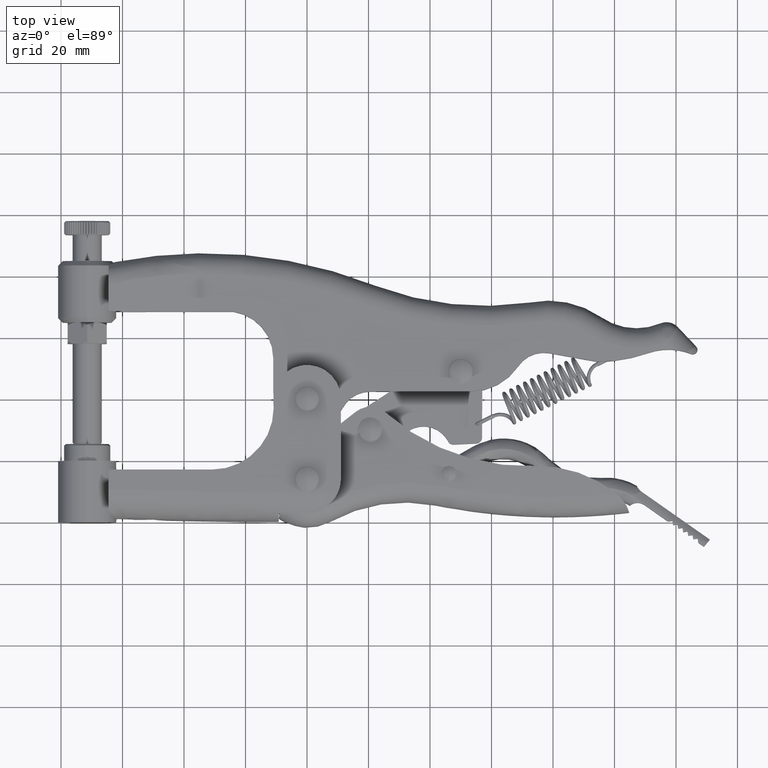
[diagram: clean part render]
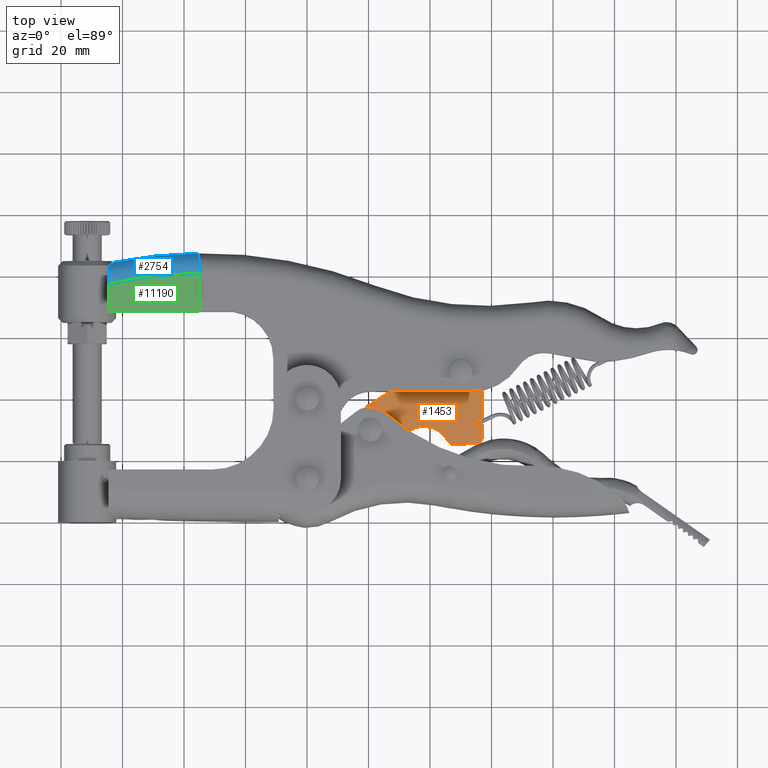
[diagram: same view with three faces highlighted in distinct colors, each labeled with its STEP entity id]
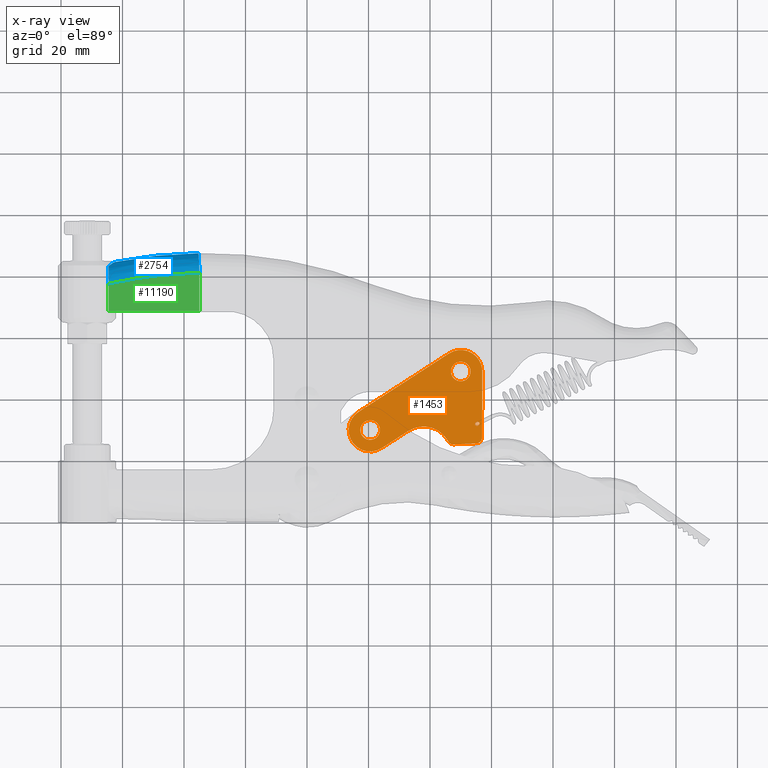
[diagram: x-ray of the same camera — body ghosted, the three highlighted faces saturated]
A machine part, top view with three faces highlighted in distinct colors.
The next image is the same camera in x-ray (body ghosted, the three faces saturated) — at least one of them is partly hidden behind the body in this view.
Their STEP definitions:

[orange] entity #1453 — the highlighted planar face has unit normal (0, -0, 1).
#10 = DIRECTION ( 'NONE',  ( 3.365464950932093500E-016, -2.261047999189759900E-016, 1.000000000000000000 ) ) ;
#728 = CARTESIAN_POINT ( 'NONE',  ( 55.88016366359298100, 12.79785140433035200, 3.000000000000005800 ) ) ;
#831 = CARTESIAN_POINT ( 'NONE',  ( 50.00000000000006400, 9.000000000000007100, 3.000000000000009800 ) ) ;
#988 = VERTEX_POINT ( 'NONE', #3688 ) ;
#1080 = DIRECTION ( 'NONE',  ( -0.8400233805133320300, -0.5425502006182965100, 1.445602896647328300E-016 ) ) ;
#1212 = DIRECTION ( 'NONE',  ( 0.8400233805133319200, 0.5425502006182966200, -1.600337199513108900E-016 ) ) ;
#1250 = ORIENTED_EDGE ( 'NONE', *, *, #16019, .T. ) ;
#1367 = AXIS2_PLACEMENT_3D ( 'NONE', #14177, #10, #16548 ) ;
#1441 = DIRECTION ( 'NONE',  ( 3.365464950932093500E-016, -2.261047999189759900E-016, 1.000000000000000000 ) ) ;
#1453 = ADVANCED_FACE ( 'NONE', ( #11820, #30729, #29981, #23678 ), #22285, .T. ) ;
#1895 = AXIS2_PLACEMENT_3D ( 'NONE', #15591, #1441, #17994 ) ;
#1942 = AXIS2_PLACEMENT_3D ( 'NONE', #831, #17385, #3203 ) ;
#2058 = VERTEX_POINT ( 'NONE', #7025 ) ;
#2194 = ORIENTED_EDGE ( 'NONE', *, *, #15214, .F. ) ;
#2273 = CARTESIAN_POINT ( 'NONE',  ( 55.91186988155786300, -8.341241883703387900, 3.000000000000001300 ) ) ;
#2460 = CARTESIAN_POINT ( 'NONE',  ( 54.63505146514872000, -7.997772829490882500, 3.000000000000002200 ) ) ;
#2483 = DIRECTION ( 'NONE',  ( 3.365464950932093500E-016, -2.261047999189759900E-016, 1.000000000000000000 ) ) ;
#2559 = B_SPLINE_CURVE_WITH_KNOTS ( 'NONE', 3,
 ( #11858, #26056, #16629, #2460, #19018, #4828, #21398, #7193, #23769, #9563, #26155, #11961, #28549, #14350 ),
 .UNSPECIFIED., .F., .F.,
 ( 4, 2, 2, 2, 2, 2, 4 ),
 ( 0.004224251357544340500, 0.004489551586989582400, 0.004754851816434825200, 0.005285452275325312400, 0.005816052734215798800, 0.006081352963661051900, 0.006346653193106306000 ),
 .UNSPECIFIED. ) ;
#2662 = CIRCLE ( 'NONE', #18068, 7.000000000000002700 ) ;
#2990 = CARTESIAN_POINT ( 'NONE',  ( 49.99999999999965900, 9.000000000002275500, 3.000000000000007100 ) ) ;
#3132 = VERTEX_POINT ( 'NONE', #728 ) ;
#3203 = DIRECTION ( 'NONE',  ( 1.000000000000000000, 0.0000000000000000000, -2.710505431213759600E-016 ) ) ;
#3601 = CARTESIAN_POINT ( 'NONE',  ( 37.91149953354408100, -17.85475056594568200, 3.000000000000004900 ) ) ;
#3688 = CARTESIAN_POINT ( 'NONE',  ( 56.99997832334123200, 8.982579530772522200, 3.000000000000004900 ) ) ;
#3785 = LINE ( 'NONE', #21415, #16377 ) ;
#3835 = ORIENTED_EDGE ( 'NONE', *, *, #11928, .T. ) ;
#4274 = LINE ( 'NONE', #7645, #22420 ) ;
#4414 = VERTEX_POINT ( 'NONE', #14735 ) ;
#4502 = CIRCLE ( 'NONE', #19075, 7.000000000000007100 ) ;
#4650 = CARTESIAN_POINT ( 'NONE',  ( 55.46222331067158300, -8.631234747194520600, 3.000000000000000900 ) ) ;
#4828 = CARTESIAN_POINT ( 'NONE',  ( 54.78467375531331400, -7.673714168762497700, 3.000000000000000400 ) ) ;
#4911 = CIRCLE ( 'NONE', #11262, 9.000000000000067500 ) ;
#5219 = ORIENTED_EDGE ( 'NONE', *, *, #18344, .T. ) ;
#5337 = DIRECTION ( 'NONE',  ( -0.8400233805133320300, -0.5425502006182965100, 1.858632295689435400E-016 ) ) ;
#5653 = CARTESIAN_POINT ( 'NONE',  ( 23.72357957778722000, -10.03808653969601900, 3.000000000000015500 ) ) ;
#5793 = VERTEX_POINT ( 'NONE', #22972 ) ;
#5952 = DIRECTION ( 'NONE',  ( -0.8400233805133320300, -0.5425502006182965100, 1.445602896647328300E-016 ) ) ;
#6017 = AXIS2_PLACEMENT_3D ( 'NONE', #28138, #13945, #30510 ) ;
#6167 = ORIENTED_EDGE ( 'NONE', *, *, #21220, .F. ) ;
#6884 = CARTESIAN_POINT ( 'NONE',  ( 56.03467431464443400, -7.673614474005277400, 3.000000000000001300 ) ) ;
#7012 = CARTESIAN_POINT ( 'NONE',  ( 55.01648755163074600, -8.625803061720629800, 3.000000000000000900 ) ) ;
#7025 = CARTESIAN_POINT ( 'NONE',  ( 54.68367584127175000, -8.345085758288986400, 3.000000000000001300 ) ) ;
#7193 = CARTESIAN_POINT ( 'NONE',  ( 55.24812313021613600, -7.399570885466086000, 3.000000000000000900 ) ) ;
#7645 = CARTESIAN_POINT ( 'NONE',  ( 56.99997832334122400, 8.982579530772522200, 3.000000000000004900 ) ) ;
#8158 = AXIS2_PLACEMENT_3D ( 'NONE', #25637, #11424, #28036 ) ;
#8291 = ORIENTED_EDGE ( 'NONE', *, *, #12843, .T. ) ;
#8548 = ORIENTED_EDGE ( 'NONE', *, *, #19518, .T. ) ;
#8550 = LINE ( 'NONE', #17770, #14856 ) ;
#8669 = ORIENTED_EDGE ( 'NONE', *, *, #26997, .F. ) ;
#9015 = CARTESIAN_POINT ( 'NONE',  ( 17.32357957778721800, -10.03808653969601900, 3.000000000000017300 ) ) ;
#9388 = CARTESIAN_POINT ( 'NONE',  ( 54.78507113184134200, -8.493774728260643100, 3.000000000000002200 ) ) ;
#9563 = CARTESIAN_POINT ( 'NONE',  ( 55.69137039047978300, -7.406783459931113500, 3.000000000000000900 ) ) ;
#9578 = DIRECTION ( 'NONE',  ( 0.9987566876065757700, 0.04985056630712258300, -3.248566103441767900E-016 ) ) ;
#9889 = EDGE_CURVE ( 'NONE', #11141, #11527, #24305, .T. ) ;
#10417 = CIRCLE ( 'NONE', #10923, 1.999999999999998900 ) ;
#10472 = CARTESIAN_POINT ( 'NONE',  ( 54.94183673234290700, -14.37767087287276400, 3.000000000000000000 ) ) ;
#10544 = VERTEX_POINT ( 'NONE', #20752 ) ;
#10770 = CARTESIAN_POINT ( 'NONE',  ( 24.32143098211489700, -15.91825020328709100, 3.000000000000010200 ) ) ;
#10815 = CARTESIAN_POINT ( 'NONE',  ( 20.52357957778721700, -10.03808653969601900, 3.000000000000016400 ) ) ;
#10923 = AXIS2_PLACEMENT_3D ( 'NONE', #16651, #2483, #19038 ) ;
#11003 = AXIS2_PLACEMENT_3D ( 'NONE', #10815, #27418, #13212 ) ;
#11141 = VERTEX_POINT ( 'NONE', #16055 ) ;
#11262 = AXIS2_PLACEMENT_3D ( 'NONE', #29447, #15241, #1080 ) ;
#11424 = DIRECTION ( 'NONE',  ( 3.365464950932093500E-016, -2.261047999189759900E-016, 1.000000000000000000 ) ) ;
#11527 = VERTEX_POINT ( 'NONE', #17180 ) ;
#11676 = CARTESIAN_POINT ( 'NONE',  ( 56.03467431464443400, -7.673614474005277400, 3.000000000000001300 ) ) ;
#11778 = CARTESIAN_POINT ( 'NONE',  ( 54.68367584127175000, -8.345085758288986400, 3.000000000000001300 ) ) ;
#11820 = FACE_BOUND ( 'NONE', #23315, .T. ) ;
#11858 = CARTESIAN_POINT ( 'NONE',  ( 54.68367584127175000, -8.345085758288986400, 3.000000000000001300 ) ) ;
#11928 = EDGE_CURVE ( 'NONE', #3132, #10544, #19482, .T. ) ;
#11961 = CARTESIAN_POINT ( 'NONE',  ( 55.93099309033260600, -7.528070872549030000, 3.000000000000000900 ) ) ;
#12429 = EDGE_CURVE ( 'NONE', #2058, #21310, #2559, .T. ) ;
#12695 = VERTEX_POINT ( 'NONE', #10770 ) ;
#12843 = EDGE_CURVE ( 'NONE', #4414, #988, #4274, .T. ) ;
#12866 = DIRECTION ( 'NONE',  ( -0.8400233805133320300, -0.5425502006182964000, 1.600337199513109400E-016 ) ) ;
#13212 = DIRECTION ( 'NONE',  ( 1.000000000000000000, 0.0000000000000000000, -2.710505431213759600E-016 ) ) ;
#13599 = CARTESIAN_POINT ( 'NONE',  ( 55.04652197242600000, -14.37244575792039900, 3.000000000000000000 ) ) ;
#13796 = AXIS2_PLACEMENT_3D ( 'NONE', #10472, #27061, #12866 ) ;
#13827 = CARTESIAN_POINT ( 'NONE',  ( 20.52357957778681900, -10.03808653969375800, 3.000000000000012400 ) ) ;
#13945 = DIRECTION ( 'NONE',  ( 3.365464950932093500E-016, -2.261047999189759900E-016, 1.000000000000000000 ) ) ;
#14042 = CARTESIAN_POINT ( 'NONE',  ( 47.74930561932976800, -14.73666896881992700, 3.000000000000002200 ) ) ;
#14070 = CARTESIAN_POINT ( 'NONE',  ( 56.08803784128576100, -7.845352811508272200, 3.000000000000001300 ) ) ;
#14177 = CARTESIAN_POINT ( 'NONE',  ( 20.52357957778721700, -10.03808653969601900, 3.000000000000016400 ) ) ;
#14350 = CARTESIAN_POINT ( 'NONE',  ( 56.03467431464443400, -7.673614474005277400, 3.000000000000001300 ) ) ;
#14735 = CARTESIAN_POINT ( 'NONE',  ( 56.94681464648077500, -12.37990965963003400, 2.999999999999999600 ) ) ;
#14856 = VECTOR ( 'NONE', #1212, 1000.000000000000000 ) ;
#15214 = EDGE_CURVE ( 'NONE', #17401, #16263, #26428, .T. ) ;
#15241 = DIRECTION ( 'NONE',  ( -3.365464950932093500E-016, 2.261047999189759900E-016, -1.000000000000000000 ) ) ;
#15543 = ORIENTED_EDGE ( 'NONE', *, *, #19178, .T. ) ;
#15591 = CARTESIAN_POINT ( 'NONE',  ( 49.99999999999965900, 9.000000000002275500, 3.000000000000007100 ) ) ;
#16019 = EDGE_CURVE ( 'NONE', #11527, #29471, #4911, .T. ) ;
#16055 = CARTESIAN_POINT ( 'NONE',  ( 33.02854772797937200, -10.29454014132563900, 3.000000000000008400 ) ) ;
#16119 = ORIENTED_EDGE ( 'NONE', *, *, #20441, .T. ) ;
#16131 = CIRCLE ( 'NONE', #1942, 3.200000000000001500 ) ;
#16213 = DIRECTION ( 'NONE',  ( -0.8400233805133320300, -0.5425502006182965100, 1.858632295689434400E-016 ) ) ;
#16263 = VERTEX_POINT ( 'NONE', #9015 ) ;
#16377 = VECTOR ( 'NONE', #9578, 1000.000000000000100 ) ;
#16439 = CARTESIAN_POINT ( 'NONE',  ( 56.04006666863584500, -8.108467644996119700, 3.000000000000000900 ) ) ;
#16548 = DIRECTION ( 'NONE',  ( 1.000000000000000000, 0.0000000000000000000, -2.710505431213759600E-016 ) ) ;
#16629 = CARTESIAN_POINT ( 'NONE',  ( 54.62636189608717500, -8.174883689408993300, 3.000000000000001800 ) ) ;
#16651 = CARTESIAN_POINT ( 'NONE',  ( 54.94682083981175700, -12.37493238270724800, 3.000000000000003100 ) ) ;
#16709 = CIRCLE ( 'NONE', #8158, 3.200000000000001500 ) ;
#16731 = CARTESIAN_POINT ( 'NONE',  ( 45.87903994977526900, -13.66926377039565900, 3.000000000000003100 ) ) ;
#17180 = CARTESIAN_POINT ( 'NONE',  ( 45.47170995816412600, -12.97179876038097700, 3.000000000000003600 ) ) ;
#17207 = CARTESIAN_POINT ( 'NONE',  ( 46.80000000000006100, 9.000000000000007100, 3.000000000000010700 ) ) ;
#17385 = DIRECTION ( 'NONE',  ( 3.365464950932093500E-016, -2.261047999189759900E-016, 1.000000000000000000 ) ) ;
#17401 = VERTEX_POINT ( 'NONE', #5653 ) ;
#17543 = ORIENTED_EDGE ( 'NONE', *, *, #9889, .T. ) ;
#17770 = CARTESIAN_POINT ( 'NONE',  ( 24.32143098211489700, -15.91825020328709100, 3.000000000000010200 ) ) ;
#17994 = DIRECTION ( 'NONE',  ( -0.8400233805133320300, -0.5425502006182965100, 1.858632295689435400E-016 ) ) ;
#18068 = AXIS2_PLACEMENT_3D ( 'NONE', #2990, #19545, #5337 ) ;
#18344 = EDGE_CURVE ( 'NONE', #21310, #2058, #25404, .T. ) ;
#18423 = EDGE_CURVE ( 'NONE', #25017, #29729, #3785, .T. ) ;
#18838 = CARTESIAN_POINT ( 'NONE',  ( 55.77525910671716500, -8.467977552843320800, 3.000000000000000400 ) ) ;
#19018 = CARTESIAN_POINT ( 'NONE',  ( 54.66082280025447900, -7.910384893900481300, 3.000000000000002200 ) ) ;
#19038 = DIRECTION ( 'NONE',  ( -0.8400233805133319200, -0.5425502006182967300, 2.168404344971010100E-016 ) ) ;
#19075 = AXIS2_PLACEMENT_3D ( 'NONE', #13827, #30414, #16213 ) ;
#19178 = EDGE_CURVE ( 'NONE', #988, #3132, #2662, .T. ) ;
#19482 = CIRCLE ( 'NONE', #1895, 7.000000000000002700 ) ;
#19518 = EDGE_CURVE ( 'NONE', #21242, #12695, #4502, .T. ) ;
#19545 = DIRECTION ( 'NONE',  ( 3.365464950932093500E-016, -2.261047999189759900E-016, 1.000000000000000000 ) ) ;
#19705 = AXIS2_PLACEMENT_3D ( 'NONE', #3601, #20166, #5952 ) ;
#20087 = ORIENTED_EDGE ( 'NONE', *, *, #12429, .T. ) ;
#20166 = DIRECTION ( 'NONE',  ( -3.365464950932093500E-016, 2.261047999189759900E-016, -1.000000000000000000 ) ) ;
#20199 = CARTESIAN_POINT ( 'NONE',  ( 46.20214859567158100, 14.88016366359560600, 3.000000000000009800 ) ) ;
#20441 = EDGE_CURVE ( 'NONE', #29729, #4414, #10417, .T. ) ;
#20752 = CARTESIAN_POINT ( 'NONE',  ( 46.20214859567158100, 14.88016366359560600, 3.000000000000009800 ) ) ;
#20880 = EDGE_CURVE ( 'NONE', #12695, #11141, #8550, .T. ) ;
#20985 = CARTESIAN_POINT ( 'NONE',  ( 16.72572817345873700, -4.157922876100427900, 3.000000000000015100 ) ) ;
#21214 = CARTESIAN_POINT ( 'NONE',  ( 55.27974950392078300, -8.669937496578326000, 3.000000000000001300 ) ) ;
#21220 = EDGE_CURVE ( 'NONE', #26051, #5793, #16709, .T. ) ;
#21242 = VERTEX_POINT ( 'NONE', #20985 ) ;
#21310 = VERTEX_POINT ( 'NONE', #6884 ) ;
#21398 = CARTESIAN_POINT ( 'NONE',  ( 54.92561036455417400, -7.551364831308092100, 3.000000000000000900 ) ) ;
#21415 = CARTESIAN_POINT ( 'NONE',  ( 54.94183673234290700, -14.37767087287271800, 3.000000000000000000 ) ) ;
#21843 = DIRECTION ( 'NONE',  ( 0.002488638461392578300, 0.9999969033345096300, 2.252665571963090500E-016 ) ) ;
#22285 = PLANE ( 'NONE',  #13796 ) ;
#22420 = VECTOR ( 'NONE', #21843, 999.9999999999998900 ) ;
#22972 = CARTESIAN_POINT ( 'NONE',  ( 53.20000000000006700, 9.000000000000007100, 3.000000000000008900 ) ) ;
#23026 = ORIENTED_EDGE ( 'NONE', *, *, #24970, .T. ) ;
#23060 = EDGE_LOOP ( 'NONE', ( #2194, #8669 ) ) ;
#23295 = CIRCLE ( 'NONE', #6017, 1.999999999999998900 ) ;
#23315 = EDGE_LOOP ( 'NONE', ( #24967, #6167 ) ) ;
#23600 = CARTESIAN_POINT ( 'NONE',  ( 54.93089698204124000, -8.593366108244833200, 3.000000000000000900 ) ) ;
#23678 = FACE_OUTER_BOUND ( 'NONE', #25580, .T. ) ;
#23769 = CARTESIAN_POINT ( 'NONE',  ( 55.42890254250542600, -7.368409928722154900, 3.000000000000000900 ) ) ;
#23942 = VECTOR ( 'NONE', #29714, 1000.000000000000000 ) ;
#24305 = CIRCLE ( 'NONE', #19705, 9.000000000000067500 ) ;
#24967 = ORIENTED_EDGE ( 'NONE', *, *, #28917, .F. ) ;
#24970 = EDGE_CURVE ( 'NONE', #29471, #25017, #23295, .T. ) ;
#25017 = VERTEX_POINT ( 'NONE', #14042 ) ;
#25404 = B_SPLINE_CURVE_WITH_KNOTS ( 'NONE', 3,
 ( #11676, #25874, #14070, #30642, #16439, #2273, #18838, #4650, #21214, #7012, #23600, #9388, #25968, #11778 ),
 .UNSPECIFIED., .F., .F.,
 ( 4, 2, 2, 2, 2, 2, 4 ),
 ( 0.002103345937367953200, 0.002368459114890001400, 0.002633572292412049700, 0.003163798647456146600, 0.003694025002500243200, 0.003959138180022291400, 0.004224251357544340500 ),
 .UNSPECIFIED. ) ;
#25580 = EDGE_LOOP ( 'NONE', ( #17543, #1250, #23026, #28058, #16119, #8291, #15543, #3835, #27687, #8548, #29705 ) ) ;
#25637 = CARTESIAN_POINT ( 'NONE',  ( 50.00000000000006400, 9.000000000000007100, 3.000000000000009800 ) ) ;
#25874 = CARTESIAN_POINT ( 'NONE',  ( 56.07406556243556400, -7.752869561865087400, 3.000000000000000400 ) ) ;
#25968 = CARTESIAN_POINT ( 'NONE',  ( 54.72354806466653800, -8.425308567807617200, 3.000000000000001800 ) ) ;
#26051 = VERTEX_POINT ( 'NONE', #17207 ) ;
#26056 = CARTESIAN_POINT ( 'NONE',  ( 54.64377548583112800, -8.264806347167432700, 3.000000000000002200 ) ) ;
#26155 = CARTESIAN_POINT ( 'NONE',  ( 55.77771746555011800, -7.434373458909135500, 3.000000000000002200 ) ) ;
#26428 = CIRCLE ( 'NONE', #1367, 3.200000000000001500 ) ;
#26997 = EDGE_CURVE ( 'NONE', #16263, #17401, #29532, .T. ) ;
#27061 = DIRECTION ( 'NONE',  ( 3.365464950932093900E-016, -2.261047999189761400E-016, 1.000000000000000000 ) ) ;
#27418 = DIRECTION ( 'NONE',  ( 3.365464950932093500E-016, -2.261047999189759900E-016, 1.000000000000000000 ) ) ;
#27482 = EDGE_LOOP ( 'NONE', ( #5219, #20087 ) ) ;
#27687 = ORIENTED_EDGE ( 'NONE', *, *, #27923, .T. ) ;
#27923 = EDGE_CURVE ( 'NONE', #10544, #21242, #30259, .T. ) ;
#28036 = DIRECTION ( 'NONE',  ( 1.000000000000000000, 0.0000000000000000000, -2.710505431213759600E-016 ) ) ;
#28058 = ORIENTED_EDGE ( 'NONE', *, *, #18423, .T. ) ;
#28138 = CARTESIAN_POINT ( 'NONE',  ( 47.64960448671552500, -12.73915559360677100, 3.000000000000002700 ) ) ;
#28549 = CARTESIAN_POINT ( 'NONE',  ( 55.99525527416079000, -7.594303467324129600, 3.000000000000001800 ) ) ;
#28917 = EDGE_CURVE ( 'NONE', #5793, #26051, #16131, .T. ) ;
#29447 = CARTESIAN_POINT ( 'NONE',  ( 37.91149953354408100, -17.85475056594568200, 3.000000000000004900 ) ) ;
#29471 = VERTEX_POINT ( 'NONE', #16731 ) ;
#29532 = CIRCLE ( 'NONE', #11003, 3.200000000000001500 ) ;
#29705 = ORIENTED_EDGE ( 'NONE', *, *, #20880, .T. ) ;
#29714 = DIRECTION ( 'NONE',  ( -0.8400233805133321400, -0.5425502006182965100, 1.600337199513109700E-016 ) ) ;
#29729 = VERTEX_POINT ( 'NONE', #13599 ) ;
#29981 = FACE_BOUND ( 'NONE', #23060, .T. ) ;
#30259 = LINE ( 'NONE', #20199, #23942 ) ;
#30414 = DIRECTION ( 'NONE',  ( 3.365464950932093500E-016, -2.261047999189759900E-016, 1.000000000000000000 ) ) ;
#30510 = DIRECTION ( 'NONE',  ( -0.8400233805133319200, -0.5425502006182967300, 2.168404344971010100E-016 ) ) ;
#30642 = CARTESIAN_POINT ( 'NONE',  ( 56.07018453695887700, -8.022580124843314000, 3.000000000000000400 ) ) ;
#30729 = FACE_BOUND ( 'NONE', #27482, .T. ) ;

[blue] entity #2754 — the highlighted face is a freeform B-spline surface patch.
#549 = CARTESIAN_POINT ( 'NONE',  ( -64.50000000000000000, 41.00317788977373100, 8.744203127612967900 ) ) ;
#634 = CARTESIAN_POINT ( 'NONE',  ( -35.00009358682923700, 40.98672685063045400, 6.500000000000000000 ) ) ;
#999 =( BOUNDED_SURFACE ( )  B_SPLINE_SURFACE ( 3, 2, ( 
 ( #18654, #11490, #4473 ),
 ( #21046, #6836, #23418 ),
 ( #9209, #25800, #11598 ),
 ( #28192, #13996, #30565 ) ),
 .UNSPECIFIED., .F., .F., .F. ) 
 B_SPLINE_SURFACE_WITH_KNOTS ( ( 4, 4 ),
 ( 3, 3 ),
 ( 1.585657138301858100, 1.798177777115694600 ),
 ( 0.0000000000000000000, 1.000000000000000000 ),
 .UNSPECIFIED. ) 
 GEOMETRIC_REPRESENTATION_ITEM ( )  RATIONAL_B_SPLINE_SURFACE ( (
 ( 1.000000000000000000, 0.7065237738151086700, 1.000000000000000000),
 ( 1.000000000000000000, 0.7037437141786867500, 1.000000000000000000),
 ( 1.000000000000000000, 0.7009514621077455000, 1.000000000000000000),
 ( 1.000000000000000000, 0.6982103605682362700, 1.000000000000000000) ) ) 
 REPRESENTATION_ITEM ( '' )  SURFACE ( )  );
#1252 = ORIENTED_EDGE ( 'NONE', *, *, #19472, .F. ) ;
#1927 = CARTESIAN_POINT ( 'NONE',  ( -35.34414178082126100, 47.14805045212318600, 2.100825702000252500 ) ) ;
#2041 = CARTESIAN_POINT ( 'NONE',  ( -35.03927315176785800, 42.66725467369695900, 6.282521525378232500 ) ) ;
#2754 = ADVANCED_FACE ( 'NONE', ( #25502 ), #999, .T. ) ;
#2766 = EDGE_CURVE ( 'NONE', #6786, #19326, #25217, .T. ) ;
#2926 = CARTESIAN_POINT ( 'NONE',  ( -64.50000000000001400, 41.72616158914521400, 8.222625527689237000 ) ) ;
#3056 = EDGE_CURVE ( 'NONE', #17658, #9405, #15668, .T. ) ;
#3527 = VERTEX_POINT ( 'NONE', #27637 ) ;
#4158 = ORIENTED_EDGE ( 'NONE', *, *, #13335, .F. ) ;
#4266 = CARTESIAN_POINT ( 'NONE',  ( -62.65266936060516700, 44.54975149995594600, 3.526079064920451000 ) ) ;
#4314 = CARTESIAN_POINT ( 'NONE',  ( -35.29553266551038600, 46.81508386991292500, 2.878024367094219800 ) ) ;
#4416 = CARTESIAN_POINT ( 'NONE',  ( -35.01616297213233500, 41.83841032425733900, 6.457846497968001900 ) ) ;
#4473 = CARTESIAN_POINT ( 'NONE',  ( -34.45983390451810600, 40.98415475480066300, 6.439712263641652600 ) ) ;
#4548 = CARTESIAN_POINT ( 'NONE',  ( -35.00000000000002100, 40.97510980693673600, 6.500000000000000000 ) ) ;
#5277 = CARTESIAN_POINT ( 'NONE',  ( -64.50000000000001400, 42.37450587559765600, 7.612431345254293500 ) ) ;
#6569 = CARTESIAN_POINT ( 'NONE',  ( -35.46638941995102800, 47.48050937067694100, -7.857632469581329500E-017 ) ) ;
#6665 = CARTESIAN_POINT ( 'NONE',  ( -35.25941754218521900, 46.50458907039690400, 3.437184539132131600 ) ) ;
#6773 = CARTESIAN_POINT ( 'NONE',  ( -35.00009358682923700, 40.98672685063045400, 6.500000000000000000 ) ) ;
#6786 = VERTEX_POINT ( 'NONE', #17704 ) ;
#6836 = CARTESIAN_POINT ( 'NONE',  ( -45.21863130191157200, 47.38705558953046200, 7.640497626590235600 ) ) ;
#6942 = CARTESIAN_POINT ( 'NONE',  ( -64.42920101904044800, 43.31088982911597200, 6.345452584637952100 ) ) ;
#7536 = B_SPLINE_CURVE_WITH_KNOTS ( 'NONE', 3,
 ( #26028, #28429, #9938, #26529, #12318, #28914, #14717, #549, #17103, #2926, #19488, #5277, #21849, #7650, #24240, #10033 ),
 .UNSPECIFIED., .F., .F.,
 ( 4, 2, 2, 2, 2, 2, 2, 4 ),
 ( 0.0000000000000000000, 0.001770199559611178200, 0.002655299339416766700, 0.003540399119222355100, 0.004425498899027944000, 0.005310598678833531600, 0.006195698458639120100, 0.007080798238444708500 ),
 .UNSPECIFIED. ) ;
#7650 = CARTESIAN_POINT ( 'NONE',  ( -64.50000000000000000, 42.93510916144119700, 6.926879723218160500 ) ) ;
#7985 = ORIENTED_EDGE ( 'NONE', *, *, #23562, .F. ) ;
#8468 = ORIENTED_EDGE ( 'NONE', *, *, #28426, .T. ) ;
#9003 = CARTESIAN_POINT ( 'NONE',  ( -62.91655342473178800, 44.40896134114434800, 4.120992432667116600 ) ) ;
#9051 = CARTESIAN_POINT ( 'NONE',  ( -35.20154104804060300, 45.88021189187205100, 4.296556425027447700 ) ) ;
#9209 = CARTESIAN_POINT ( 'NONE',  ( -56.50932772419364600, 46.03453862122597700, 2.246822064148479700 ) ) ;
#9282 = CARTESIAN_POINT ( 'NONE',  ( -54.81005120966214200, 39.57619200480658600, 8.710992423558067800 ) ) ;
#9405 = VERTEX_POINT ( 'NONE', #30655 ) ;
#9938 = CARTESIAN_POINT ( 'NONE',  ( -64.50000000000000000, 38.53095210918100100, 9.714817458943231900 ) ) ;
#10033 = CARTESIAN_POINT ( 'NONE',  ( -64.50000000000000000, 43.25473119212195200, 6.422616289332549600 ) ) ;
#10506 = CARTESIAN_POINT ( 'NONE',  ( -64.50000000000000000, 43.25473119212195200, 6.422616289332549600 ) ) ;
#11213 = CARTESIAN_POINT ( 'NONE',  ( -62.44733472293432900, 44.59079163115710300, 2.880842130594697200 ) ) ;
#11386 = CARTESIAN_POINT ( 'NONE',  ( -63.55824344934909900, 43.97700011620632700, 5.222342214433222600 ) ) ;
#11427 = CARTESIAN_POINT ( 'NONE',  ( -35.13789835392783800, 44.94737857668690900, 5.170246532740073100 ) ) ;
#11490 = CARTESIAN_POINT ( 'NONE',  ( -34.55539472696120400, 47.49416757163361800, 6.450377771376817100 ) ) ;
#11598 = CARTESIAN_POINT ( 'NONE',  ( -54.77170103573994500, 39.59804179748169200, 8.706712174956653200 ) ) ;
#11703 = CARTESIAN_POINT ( 'NONE',  ( -64.29059929454344100, 43.41999999999993800, 6.186642180388494300 ) ) ;
#12318 = CARTESIAN_POINT ( 'NONE',  ( -64.49999999999998600, 39.67494414475816500, 9.391067808058117800 ) ) ;
#13335 = EDGE_CURVE ( 'NONE', #9405, #22176, #24870, .T. ) ;
#13681 = CARTESIAN_POINT ( 'NONE',  ( -62.44733472293432900, 44.59079163115710300, 2.880842130594697200 ) ) ;
#13719 = CARTESIAN_POINT ( 'NONE',  ( -35.41814853343346700, 47.42871629914522900, 0.8520197366752333400 ) ) ;
#13781 = CARTESIAN_POINT ( 'NONE',  ( -64.09746559929189400, 43.57155939921926100, 5.961580158342368200 ) ) ;
#13826 = CARTESIAN_POINT ( 'NONE',  ( -35.08316756195603100, 43.86838326851259500, 5.841448441021497300 ) ) ;
#13996 = CARTESIAN_POINT ( 'NONE',  ( -66.16054656173676600, 43.80141121489820900, 9.977816974462204100 ) ) ;
#14180 = ORIENTED_EDGE ( 'NONE', *, *, #2766, .T. ) ;
#14594 = CARTESIAN_POINT ( 'NONE',  ( -35.00000000000002800, 40.97898228048842400, 6.500000000000000000 ) ) ;
#14717 = CARTESIAN_POINT ( 'NONE',  ( -64.50000000000000000, 40.49031135085212400, 9.036201494287960000 ) ) ;
#15609 = EDGE_CURVE ( 'NONE', #3527, #17658, #16962, .T. ) ;
#15668 = B_SPLINE_CURVE_WITH_KNOTS ( 'NONE', 3,
 ( #634, #28993, #14594, #17182 ),
 .UNSPECIFIED., .F., .F.,
 ( 4, 4 ),
 ( 0.0000000000000000000, 1.161742065505149600E-005 ),
 .UNSPECIFIED. ) ;
#16105 = CARTESIAN_POINT ( 'NONE',  ( -35.36887695112476800, 47.27242905357984200, 1.692294219568279100 ) ) ;
#16211 = CARTESIAN_POINT ( 'NONE',  ( -35.05273652700477500, 43.07548699911260600, 6.158766980118028500 ) ) ;
#16962 = B_SPLINE_CURVE_WITH_KNOTS ( 'NONE', 3,
 ( #25535, #23160, #27926, #13719, #30313, #16105, #1927, #18498, #4314, #20877, #6665, #23260, #9051, #25639, #11427, #28037, #13826, #30411, #16211, #2041, #18595, #4416, #20986, #6773 ),
 .UNSPECIFIED., .F., .F.,
 ( 4, 2, 2, 2, 2, 2, 2, 2, 2, 2, 2, 4 ),
 ( -4.955582375950637000E-005, 0.0005909725900908278100, 0.001231501003941162100, 0.002512557831641833400, 0.003153086245492169400, 0.003793614659342505800, 0.005074671487043178600, 0.006355728314743850500, 0.007636785142444525000, 0.008277313556294850100, 0.008917841970145177000, 0.01019889879784582900 ),
 .UNSPECIFIED. ) ;
#17090 = ORIENTED_EDGE ( 'NONE', *, *, #3056, .F. ) ;
#17103 = CARTESIAN_POINT ( 'NONE',  ( -64.50000000000000000, 41.25047114814826400, 8.581710275029653400 ) ) ;
#17182 = CARTESIAN_POINT ( 'NONE',  ( -35.00000000000002100, 40.97510980693673600, 6.500000000000000000 ) ) ;
#17457 = VERTEX_POINT ( 'NONE', #20051 ) ;
#17658 = VERTEX_POINT ( 'NONE', #22947 ) ;
#17704 = CARTESIAN_POINT ( 'NONE',  ( -64.29059929454344100, 43.41999999999993800, 6.186642180388494300 ) ) ;
#18106 = B_SPLINE_CURVE_WITH_KNOTS ( 'NONE', 3,
 ( #13681, #4266, #9003, #25597, #11386, #27994, #13781, #30372 ),
 .UNSPECIFIED., .F., .F.,
 ( 4, 2, 2, 4 ),
 ( 1.807466154539360300E-017, 0.001997527085039398500, 0.002996290627559089300, 0.003995054170078780500 ),
 .UNSPECIFIED. ) ;
#18393 = CARTESIAN_POINT ( 'NONE',  ( -53.55337305857288800, 46.36842329497987000, 1.931205296789857200 ) ) ;
#18498 = CARTESIAN_POINT ( 'NONE',  ( -35.30763657838423300, 46.90546535076919100, 2.686661573023435800 ) ) ;
#18501 = ORIENTED_EDGE ( 'NONE', *, *, #15609, .F. ) ;
#18595 = CARTESIAN_POINT ( 'NONE',  ( -35.03309193429098700, 42.46135299653624900, 6.333987739301126600 ) ) ;
#18654 = CARTESIAN_POINT ( 'NONE',  ( -35.27741154067244600, 47.48343702592404000, -0.02017777473185827400 ) ) ;
#19067 = CARTESIAN_POINT ( 'NONE',  ( -64.50000000000000000, 37.34696244417501300, 9.792483992325602000 ) ) ;
#19326 = VERTEX_POINT ( 'NONE', #10506 ) ;
#19472 = EDGE_CURVE ( 'NONE', #17457, #3527, #29044, .T. ) ;
#19488 = CARTESIAN_POINT ( 'NONE',  ( -64.50000000000001400, 41.95287304392243800, 8.026945910352074200 ) ) ;
#20051 = CARTESIAN_POINT ( 'NONE',  ( -62.44733472293432900, 44.59079163115710300, 2.880842130594697200 ) ) ;
#20777 = CARTESIAN_POINT ( 'NONE',  ( -44.53508016497827500, 47.33430201650580200, 0.9682932185745157800 ) ) ;
#20877 = CARTESIAN_POINT ( 'NONE',  ( -35.27145581859006300, 46.61498925465207300, 3.252798149245072600 ) ) ;
#20986 = CARTESIAN_POINT ( 'NONE',  ( -35.00701401458277900, 41.41618328289975900, 6.500000000000001800 ) ) ;
#21046 = CARTESIAN_POINT ( 'NONE',  ( -45.90288680326784700, 47.32552221587226900, 1.114338323574226100 ) ) ;
#21849 = CARTESIAN_POINT ( 'NONE',  ( -64.50000000000000000, 42.57099439794502200, 7.392454770026283500 ) ) ;
#22176 = VERTEX_POINT ( 'NONE', #19067 ) ;
#22947 = CARTESIAN_POINT ( 'NONE',  ( -35.00009358682923700, 40.98672685063045400, 6.500000000000000000 ) ) ;
#23160 = CARTESIAN_POINT ( 'NONE',  ( -35.45453118084793700, 47.48070055172097200, 0.2131813745923313000 ) ) ;
#23260 = CARTESIAN_POINT ( 'NONE',  ( -35.22406207384726400, 46.14884025090158600, 3.969588379979400700 ) ) ;
#23418 = CARTESIAN_POINT ( 'NONE',  ( -44.62487143858645300, 40.83308292683946700, 7.574228309821617900 ) ) ;
#23562 = EDGE_CURVE ( 'NONE', #22176, #19326, #7536, .T. ) ;
#24240 = CARTESIAN_POINT ( 'NONE',  ( -64.50000000000000000, 43.10362152793555200, 6.679742401976419300 ) ) ;
#24870 =( BOUNDED_CURVE ( )  B_SPLINE_CURVE ( 3, ( #4548, #30538, #9282, #25872 ),
 .UNSPECIFIED., .F., .F. ) 
 B_SPLINE_CURVE_WITH_KNOTS ( ( 4, 4 ),
 ( 1.589421891869295100, 1.796917773328260900 ),
 .UNSPECIFIED. ) 
 CURVE ( )  GEOMETRIC_REPRESENTATION_ITEM ( )  RATIONAL_B_SPLINE_CURVE ( ( 1.000000000000000000, 0.9964153386615516300, 0.9964153386615516300, 1.000000000000000000 ) ) 
 REPRESENTATION_ITEM ( '' )  );
#25217 = B_SPLINE_CURVE_WITH_KNOTS ( 'NONE', 3,
 ( #11703, #25898, #6942, #28291 ),
 .UNSPECIFIED., .F., .F.,
 ( 4, 4 ),
 ( 0.003995054170078780500, 0.004350841701212039200 ),
 .UNSPECIFIED. ) ;
#25502 = FACE_OUTER_BOUND ( 'NONE', #30467, .T. ) ;
#25535 = CARTESIAN_POINT ( 'NONE',  ( -35.46638941995102800, 47.48050937067694100, -7.857632469581329500E-017 ) ) ;
#25597 = CARTESIAN_POINT ( 'NONE',  ( -63.38833583136965900, 44.09784739629915900, 4.955092113220933600 ) ) ;
#25639 = CARTESIAN_POINT ( 'NONE',  ( -35.15854929447492300, 45.28147886704594100, 4.895844566019413900 ) ) ;
#25800 = CARTESIAN_POINT ( 'NONE',  ( -55.83045869060776300, 46.13943438656635700, 8.824879721730530600 ) ) ;
#25872 = CARTESIAN_POINT ( 'NONE',  ( -64.50000000000000000, 37.34696244417501300, 9.792483992325602000 ) ) ;
#25898 = CARTESIAN_POINT ( 'NONE',  ( -64.35939892297085400, 43.36601029956268100, 6.266815572554604900 ) ) ;
#26028 = CARTESIAN_POINT ( 'NONE',  ( -64.50000000000000000, 37.34696244417501300, 9.792483992325602000 ) ) ;
#26529 = CARTESIAN_POINT ( 'NONE',  ( -64.49999999999998600, 39.38990815576723000, 9.486828948286051500 ) ) ;
#27637 = CARTESIAN_POINT ( 'NONE',  ( -35.46638941995102800, 47.48050937067694100, -7.857632469581329500E-017 ) ) ;
#27926 = CARTESIAN_POINT ( 'NONE',  ( -35.44242983170220600, 47.47031196559454000, 0.4276668607876582500 ) ) ;
#27994 = CARTESIAN_POINT ( 'NONE',  ( -63.91219795858960100, 43.71426577251548200, 5.724475128326252700 ) ) ;
#28037 = CARTESIAN_POINT ( 'NONE',  ( -35.10028569761327300, 44.24144848693592300, 5.641821730081136200 ) ) ;
#28192 = CARTESIAN_POINT ( 'NONE',  ( -66.86244451533448800, 43.63900400157017100, 3.352257574283437500 ) ) ;
#28291 = CARTESIAN_POINT ( 'NONE',  ( -64.50000000000000000, 43.25473119212195200, 6.422616289332549600 ) ) ;
#28426 = EDGE_CURVE ( 'NONE', #17457, #6786, #18106, .T. ) ;
#28429 = CARTESIAN_POINT ( 'NONE',  ( -64.50000000000001400, 37.94560025895749800, 9.792483992325607300 ) ) ;
#28914 = CARTESIAN_POINT ( 'NONE',  ( -64.50000000000000000, 40.22473701438865800, 9.165705102918504800 ) ) ;
#28993 = CARTESIAN_POINT ( 'NONE',  ( -35.00003119238689200, 40.98285487977028700, 6.500000000000000000 ) ) ;
#29044 =( BOUNDED_CURVE ( )  B_SPLINE_CURVE ( 3, ( #11213, #18393, #20777, #6569 ),
 .UNSPECIFIED., .F., .F. ) 
 B_SPLINE_CURVE_WITH_KNOTS ( ( 4, 4 ),
 ( 4.515118905215020500, 4.696268165090294200 ),
 .UNSPECIFIED. ) 
 CURVE ( )  GEOMETRIC_REPRESENTATION_ITEM ( )  RATIONAL_B_SPLINE_CURVE ( ( 1.000000000000000000, 0.9972672811187604000, 0.9972672811187604000, 1.000000000000000000 ) ) 
 REPRESENTATION_ITEM ( '' )  );
#30313 = CARTESIAN_POINT ( 'NONE',  ( -35.40590701558284100, 47.39751987271210300, 1.062996745420922600 ) ) ;
#30372 = CARTESIAN_POINT ( 'NONE',  ( -64.29059929454344100, 43.41999999999993800, 6.186642180388494300 ) ) ;
#30411 = CARTESIAN_POINT ( 'NONE',  ( -35.06004635218016600, 43.27835095069568200, 6.086135822596638400 ) ) ;
#30467 = EDGE_LOOP ( 'NONE', ( #1252, #8468, #14180, #7985, #4158, #17090, #18501 ) ) ;
#30538 = CARTESIAN_POINT ( 'NONE',  ( -44.94134189559027700, 40.78992528181375100, 7.609549459439550700 ) ) ;
#30565 = CARTESIAN_POINT ( 'NONE',  ( -64.67618211694478700, 37.30631382816879000, 9.812147612656950500 ) ) ;
#30655 = CARTESIAN_POINT ( 'NONE',  ( -35.00000000000002100, 40.97510980693673600, 6.500000000000000000 ) ) ;

[green] entity #11190 — the highlighted planar face has unit normal (0.1109, 0, 0.9938).
#225 = LINE ( 'NONE', #9414, #6492 ) ;
#922 = CARTESIAN_POINT ( 'NONE',  ( -35.00000000000002800, 47.50100000000001200, 6.500000000000000000 ) ) ;
#2114 = ORIENTED_EDGE ( 'NONE', *, *, #2399, .T. ) ;
#2399 = EDGE_CURVE ( 'NONE', #22176, #12659, #22157, .T. ) ;
#2723 = ORIENTED_EDGE ( 'NONE', *, *, #13335, .T. ) ;
#3263 = VECTOR ( 'NONE', #22277, 1000.000000000000000 ) ;
#4262 = PLANE ( 'NONE',  #17348 ) ;
#4548 = CARTESIAN_POINT ( 'NONE',  ( -35.00000000000002100, 40.97510980693673600, 6.500000000000000000 ) ) ;
#5807 = CARTESIAN_POINT ( 'NONE',  ( -64.50000000000001400, 47.50099999999999100, 9.792483992325602000 ) ) ;
#6492 = VECTOR ( 'NONE', #28399, 1000.000000000000100 ) ;
#8192 = LINE ( 'NONE', #922, #19322 ) ;
#8998 = DIRECTION ( 'NONE',  ( 0.1109209102661195000, 7.601663487026324800E-017, 0.9938292366728478400 ) ) ;
#9282 = CARTESIAN_POINT ( 'NONE',  ( -54.81005120966214200, 39.57619200480658600, 8.710992423558067800 ) ) ;
#9405 = VERTEX_POINT ( 'NONE', #30655 ) ;
#9414 = CARTESIAN_POINT ( 'NONE',  ( -35.00000000000001400, 28.49999999999998900, 6.500000000000000000 ) ) ;
#11190 = ADVANCED_FACE ( 'NONE', ( #22831 ), #4262, .T. ) ;
#12659 = VERTEX_POINT ( 'NONE', #19719 ) ;
#13335 = EDGE_CURVE ( 'NONE', #9405, #22176, #24870, .T. ) ;
#14427 = ORIENTED_EDGE ( 'NONE', *, *, #17382, .F. ) ;
#17348 = AXIS2_PLACEMENT_3D ( 'NONE', #23220, #8998, #25592 ) ;
#17382 = EDGE_CURVE ( 'NONE', #9405, #26708, #8192, .T. ) ;
#19067 = CARTESIAN_POINT ( 'NONE',  ( -64.50000000000000000, 37.34696244417501300, 9.792483992325602000 ) ) ;
#19322 = VECTOR ( 'NONE', #29083, 1000.000000000000000 ) ;
#19719 = CARTESIAN_POINT ( 'NONE',  ( -64.50000000000000000, 28.49999999999997200, 9.792483992325602000 ) ) ;
#22157 = LINE ( 'NONE', #5807, #3263 ) ;
#22176 = VERTEX_POINT ( 'NONE', #19067 ) ;
#22277 = DIRECTION ( 'NONE',  ( 6.853228547068852600E-016, -1.000000000000000000, 0.0000000000000000000 ) ) ;
#22684 = ORIENTED_EDGE ( 'NONE', *, *, #28599, .F. ) ;
#22831 = FACE_OUTER_BOUND ( 'NONE', #29668, .T. ) ;
#23220 = CARTESIAN_POINT ( 'NONE',  ( -35.00000000000002800, 47.50100000000001200, 6.500000000000000000 ) ) ;
#24870 =( BOUNDED_CURVE ( )  B_SPLINE_CURVE ( 3, ( #4548, #30538, #9282, #25872 ),
 .UNSPECIFIED., .F., .F. ) 
 B_SPLINE_CURVE_WITH_KNOTS ( ( 4, 4 ),
 ( 1.589421891869295100, 1.796917773328260900 ),
 .UNSPECIFIED. ) 
 CURVE ( )  GEOMETRIC_REPRESENTATION_ITEM ( )  RATIONAL_B_SPLINE_CURVE ( ( 1.000000000000000000, 0.9964153386615516300, 0.9964153386615516300, 1.000000000000000000 ) ) 
 REPRESENTATION_ITEM ( '' )  );
#25592 = DIRECTION ( 'NONE',  ( 0.9938292366728478400, 0.0000000000000000000, -0.1109209102661195000 ) ) ;
#25872 = CARTESIAN_POINT ( 'NONE',  ( -64.50000000000000000, 37.34696244417501300, 9.792483992325602000 ) ) ;
#26708 = VERTEX_POINT ( 'NONE', #30653 ) ;
#28399 = DIRECTION ( 'NONE',  ( -0.9938292366728478400, -7.012958269702375400E-016, 0.1109209102661195000 ) ) ;
#28599 = EDGE_CURVE ( 'NONE', #26708, #12659, #225, .T. ) ;
#29083 = DIRECTION ( 'NONE',  ( 6.853228547068852600E-016, -1.000000000000000000, 0.0000000000000000000 ) ) ;
#29668 = EDGE_LOOP ( 'NONE', ( #14427, #2723, #2114, #22684 ) ) ;
#30538 = CARTESIAN_POINT ( 'NONE',  ( -44.94134189559027700, 40.78992528181375100, 7.609549459439550700 ) ) ;
#30653 = CARTESIAN_POINT ( 'NONE',  ( -35.00000000000003600, 28.49999999999998900, 6.500000000000000000 ) ) ;
#30655 = CARTESIAN_POINT ( 'NONE',  ( -35.00000000000002100, 40.97510980693673600, 6.500000000000000000 ) ) ;